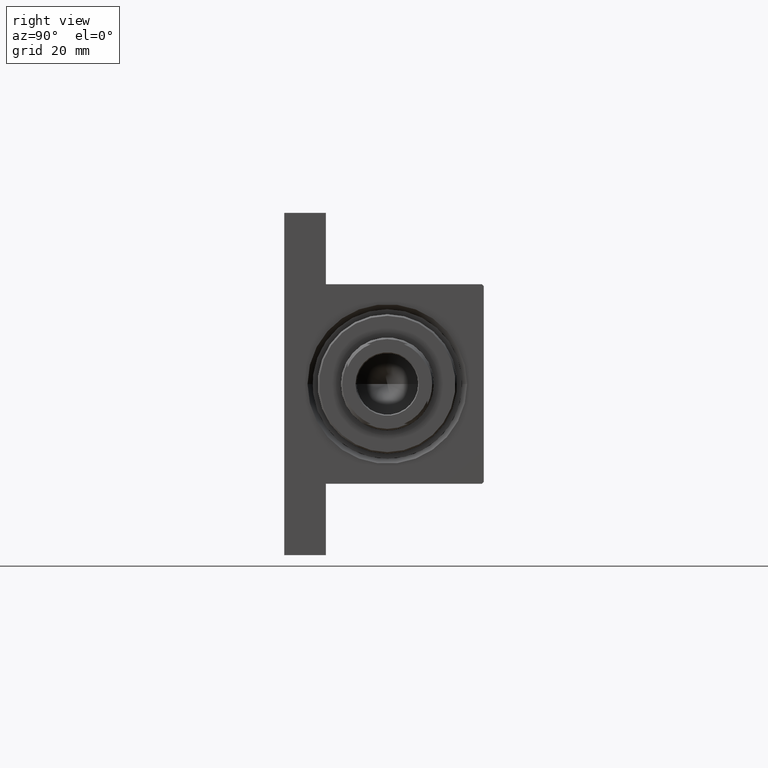
[diagram: clean part render]
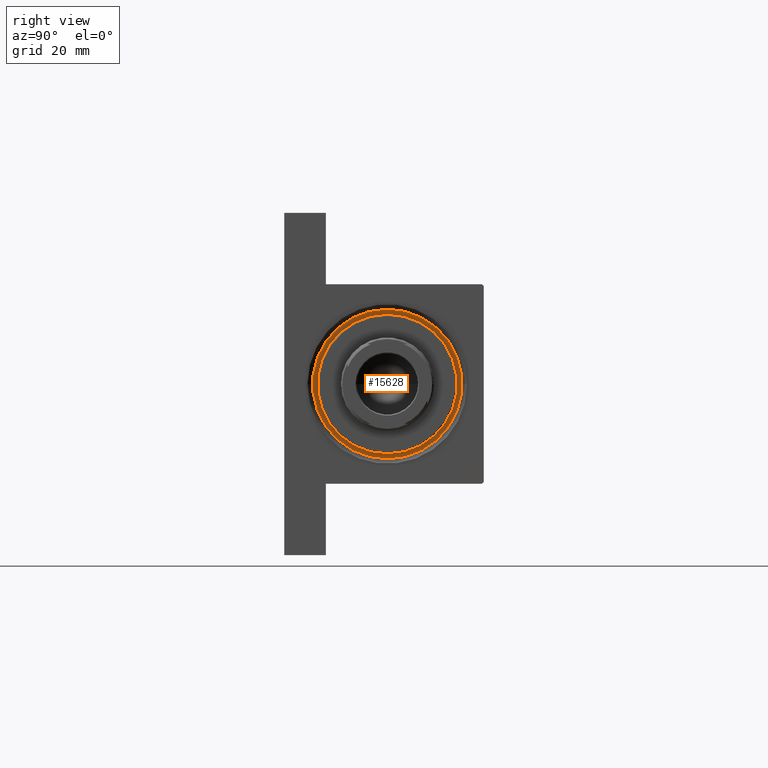
[diagram: same view with one face highlighted and labeled with its STEP entity id]
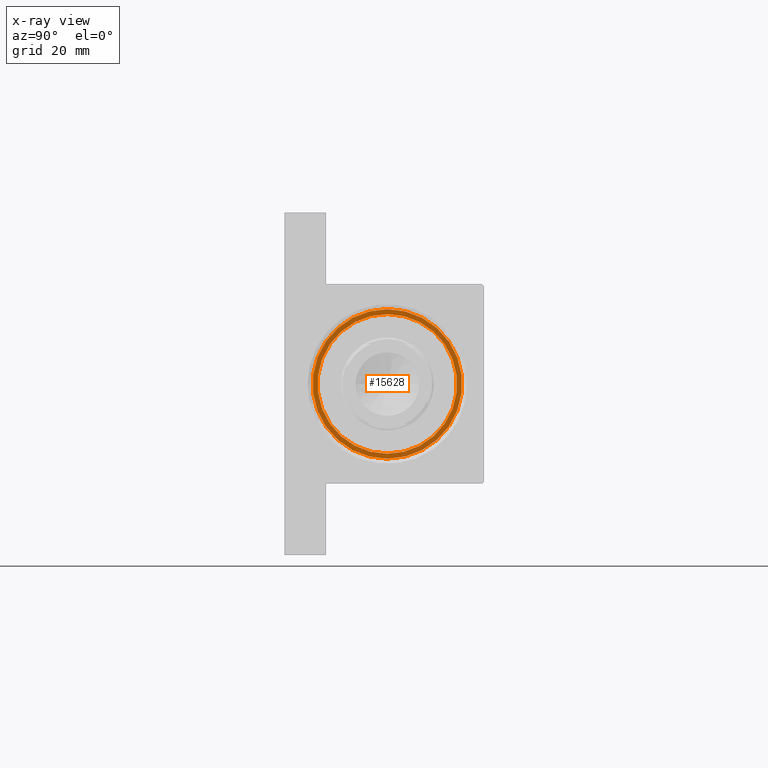
[diagram: x-ray of the same camera — body ghosted, the highlighted face saturated]
A machine part, right view. The second image highlights one B-rep face of the part: STEP entity #15628.
The next image is the same camera in x-ray: the body ghosted, the highlighted face saturated — about 0% of this face is hidden behind the body in this view.
In plain terms, the highlighted planar face has unit normal (1, 0, 0).
Its self-contained STEP definition (entity closure, byte-faithful):
#1401 = DIRECTION ( 'NONE',  ( 1.000000000000000000, 0.000000000000000000, 0.000000000000000000 ) ) ;
#4479 = CIRCLE ( 'NONE', #45221, 21.00000000000000000 ) ;
#4740 = EDGE_LOOP ( 'NONE', ( #34825, #25552 ) ) ;
#5547 = CARTESIAN_POINT ( 'NONE',  ( 22.50000000000000355, 2.755455298081545172E-15, 28.69999999999999929 ) ) ;
#8055 = DIRECTION ( 'NONE',  ( 1.000000000000000000, 0.000000000000000000, 0.000000000000000000 ) ) ;
#8446 = DIRECTION ( 'NONE',  ( 1.000000000000000000, 0.000000000000000000, 0.000000000000000000 ) ) ;
#9941 = CIRCLE ( 'NONE', #40654, 22.50000000000000355 ) ;
#10342 = VERTEX_POINT ( 'NONE', #29985 ) ;
#11362 = FACE_OUTER_BOUND ( 'NONE', #4740, .T. ) ;
#11866 = DIRECTION ( 'NONE',  ( 1.000000000000000000, 0.000000000000000000, 0.000000000000000000 ) ) ;
#12094 = VERTEX_POINT ( 'NONE', #40778 ) ;
#12354 = EDGE_CURVE ( 'NONE', #12094, #10342, #25189, .T. ) ;
#12389 = DIRECTION ( 'NONE',  ( 0.000000000000000000, 0.000000000000000000, 1.000000000000000000 ) ) ;
#12882 = EDGE_LOOP ( 'NONE', ( #24357, #40587 ) ) ;
#15628 = ADVANCED_FACE ( 'NONE', ( #26286, #11362 ), #26047, .T. ) ;
#15710 = DIRECTION ( 'NONE',  ( 1.000000000000000000, 0.000000000000000000, -0.000000000000000000 ) ) ;
#20392 = EDGE_CURVE ( 'NONE', #38620, #44633, #9941, .T. ) ;
#22939 = CARTESIAN_POINT ( 'NONE',  ( -22.50000000000000355, 0.000000000000000000, 28.69999999999999929 ) ) ;
#23209 = CARTESIAN_POINT ( 'NONE',  ( 0.000000000000000000, 0.000000000000000000, 28.69999999999999929 ) ) ;
#23231 = AXIS2_PLACEMENT_3D ( 'NONE', #44724, #23548, #1401 ) ;
#23548 = DIRECTION ( 'NONE',  ( 0.000000000000000000, 0.000000000000000000, 1.000000000000000000 ) ) ;
#24357 = ORIENTED_EDGE ( 'NONE', *, *, #12354, .F. ) ;
#25189 = CIRCLE ( 'NONE', #31341, 21.00000000000000000 ) ;
#25552 = ORIENTED_EDGE ( 'NONE', *, *, #20392, .T. ) ;
#26047 = PLANE ( 'NONE',  #28355 ) ;
#26286 = FACE_BOUND ( 'NONE', #12882, .T. ) ;
#28355 = AXIS2_PLACEMENT_3D ( 'NONE', #40457, #29417, #15710 ) ;
#29417 = DIRECTION ( 'NONE',  ( 0.000000000000000000, 0.000000000000000000, 1.000000000000000000 ) ) ;
#29985 = CARTESIAN_POINT ( 'NONE',  ( 21.00000000000000000, 2.571758278209441661E-15, 28.69999999999999929 ) ) ;
#30328 = EDGE_CURVE ( 'NONE', #10342, #12094, #4479, .T. ) ;
#31341 = AXIS2_PLACEMENT_3D ( 'NONE', #33760, #44819, #11866 ) ;
#33760 = CARTESIAN_POINT ( 'NONE',  ( 0.000000000000000000, 0.000000000000000000, 28.69999999999999929 ) ) ;
#34825 = ORIENTED_EDGE ( 'NONE', *, *, #44941, .T. ) ;
#38620 = VERTEX_POINT ( 'NONE', #5547 ) ;
#40457 = CARTESIAN_POINT ( 'NONE',  ( 0.000000000000000000, 0.000000000000000000, 28.69999999999999929 ) ) ;
#40587 = ORIENTED_EDGE ( 'NONE', *, *, #30328, .F. ) ;
#40654 = AXIS2_PLACEMENT_3D ( 'NONE', #41393, #45729, #8446 ) ;
#40778 = CARTESIAN_POINT ( 'NONE',  ( -21.00000000000000000, 0.000000000000000000, 28.69999999999999929 ) ) ;
#41393 = CARTESIAN_POINT ( 'NONE',  ( 0.000000000000000000, 0.000000000000000000, 28.69999999999999929 ) ) ;
#41671 = CIRCLE ( 'NONE', #23231, 22.50000000000000355 ) ;
#44633 = VERTEX_POINT ( 'NONE', #22939 ) ;
#44724 = CARTESIAN_POINT ( 'NONE',  ( 0.000000000000000000, 0.000000000000000000, 28.69999999999999929 ) ) ;
#44819 = DIRECTION ( 'NONE',  ( 0.000000000000000000, 0.000000000000000000, 1.000000000000000000 ) ) ;
#44941 = EDGE_CURVE ( 'NONE', #44633, #38620, #41671, .T. ) ;
#45221 = AXIS2_PLACEMENT_3D ( 'NONE', #23209, #12389, #8055 ) ;
#45729 = DIRECTION ( 'NONE',  ( 0.000000000000000000, 0.000000000000000000, 1.000000000000000000 ) ) ;